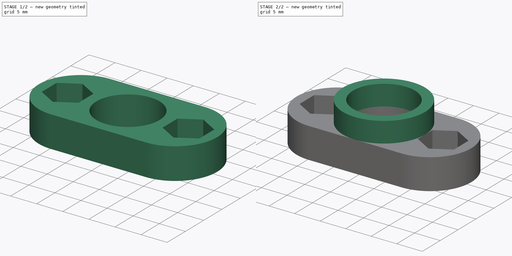
[diagram: build sequence overview — one tinted view per stage of 2, left to right]
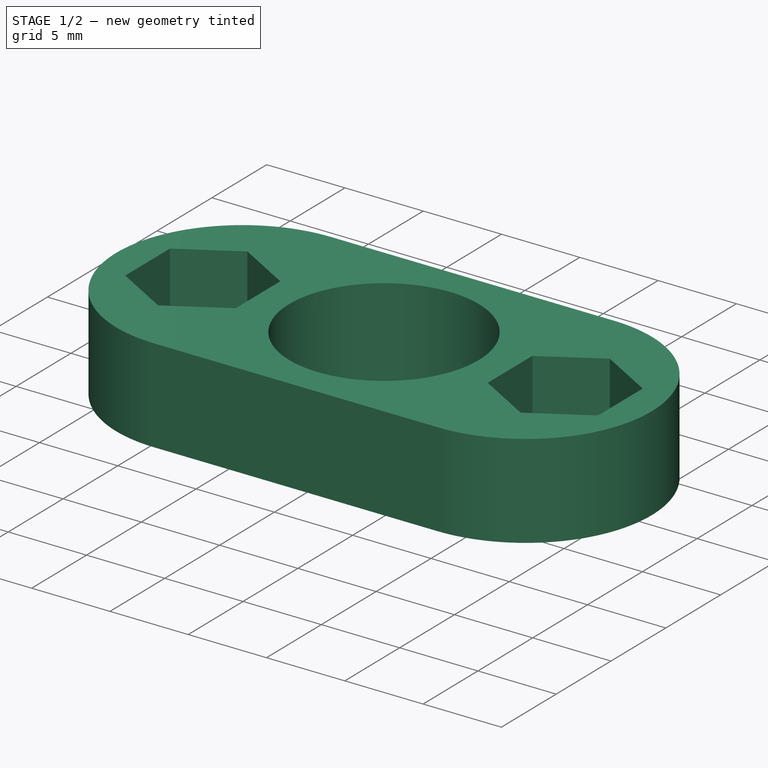
[diagram: stage 1 of 2 — iso view after this stage's code; geometry added in this stage tinted green]
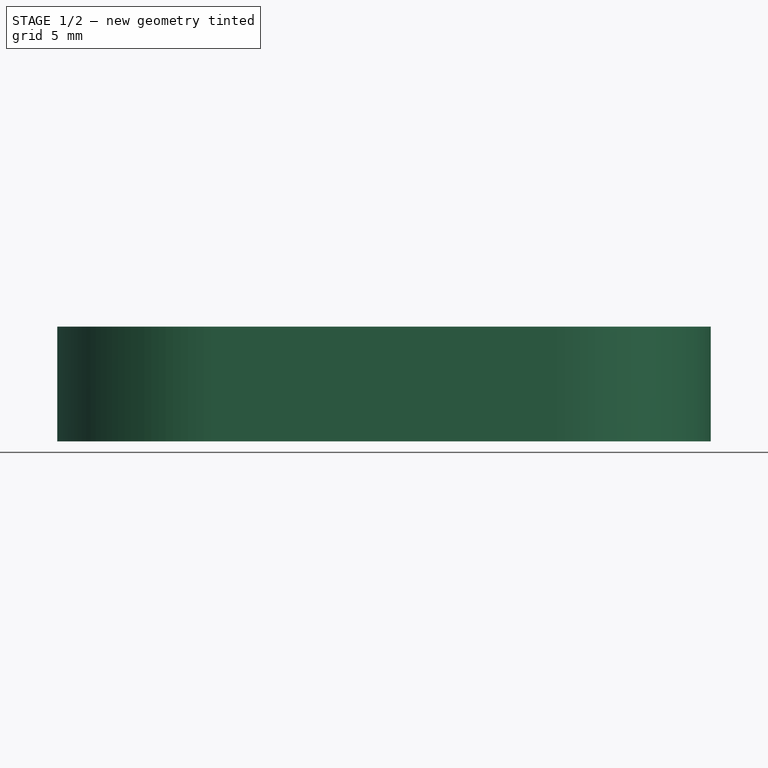
[diagram: stage 1 of 2 — front view after this stage's code; geometry added in this stage tinted green]
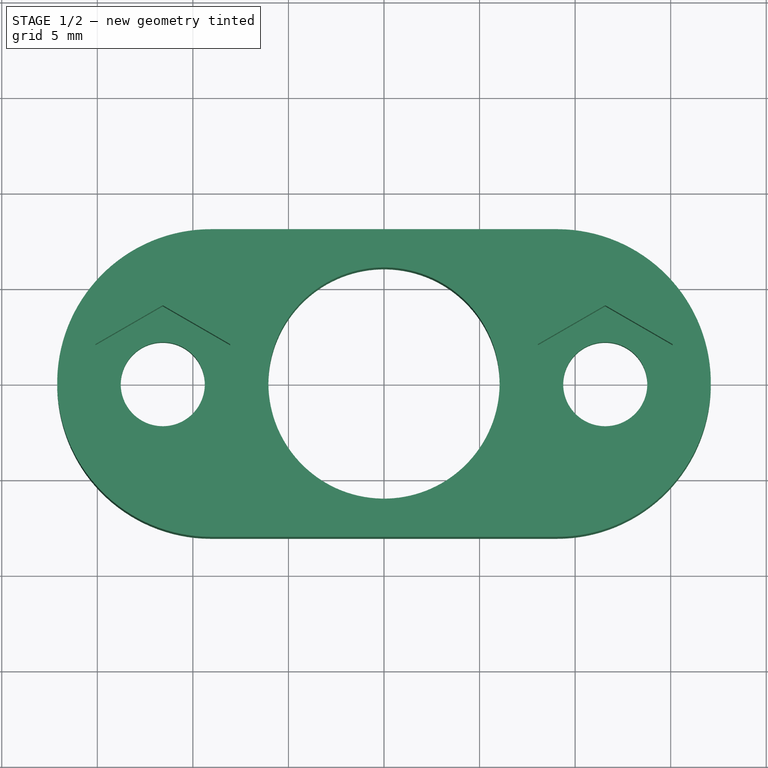
[diagram: stage 1 of 2 — top view after this stage's code; geometry added in this stage tinted green]
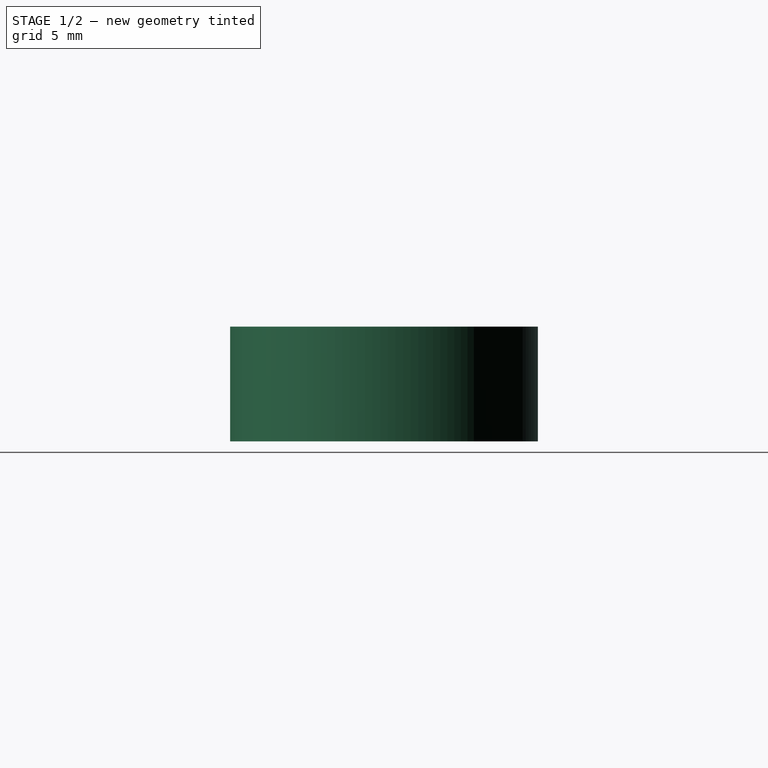
[diagram: stage 1 of 2 — right view after this stage's code; geometry added in this stage tinted green]
FCSTD DOCUMENT  (FreeCAD 0.15R4671 (Git))
Label: Halter Praezisionswelle Z-Achse - Top
License: All rights reserved
LicenseURL: http://de.wikipedia.org/wiki/Alle_Rechte_vorbehalten
objects: Sketcher::SketchObject×3, PartDesign::Pad×2, PartDesign::Pocket×1, PartDesign::Chamfer×1
note: 10 computed .brp shape members not serialized (recipe doc carries the construction recipe); baked Part::Feature solids carry a one-line shape summary decoded from their .brp

FEATURE [Sketcher::SketchObject] Sketch
  sketch-geometry (24):
    g0: Circle CenterX=0 CenterY=0 CenterZ=0 NormalX=0 NormalY=0 NormalZ=1 Radius=6.05
    g1: ArcOfCircle CenterX=-9.05 CenterY=0 CenterZ=0 NormalX=0 NormalY=0 NormalZ=1 Radius=8.05 StartAngle=1.5708 EndAngle=4.71239
    g2: ArcOfCircle CenterX=9.05 CenterY=0 CenterZ=0 NormalX=0 NormalY=0 NormalZ=1 Radius=8.05 StartAngle=4.71239 EndAngle=7.85398
    g3: LineSegment StartX=-9.05 StartY=-8.05 StartZ=0 EndX=9.05 EndY=-8.05 EndZ=0
    g4: LineSegment StartX=-9.05 StartY=8.05 StartZ=0 EndX=9.05 EndY=8.05 EndZ=0
    g5: LineSegment [constr] StartX=-8.05 StartY=2.03516 StartZ=0 EndX=-11.575 EndY=4.07032 EndZ=0
    g6: LineSegment [constr] StartX=-11.575 StartY=4.07032 StartZ=0 EndX=-15.1 EndY=2.03516 EndZ=0
    g7: LineSegment [constr] StartX=-15.1 StartY=2.03516 StartZ=0 EndX=-15.1 EndY=-2.03516 EndZ=0
    g8: LineSegment [constr] StartX=-15.1 StartY=-2.03516 StartZ=0 EndX=-11.575 EndY=-4.07032 EndZ=0
    g9: LineSegment [constr] StartX=-11.575 StartY=-4.07032 StartZ=0 EndX=-8.05 EndY=-2.03516 EndZ=0
    g10: LineSegment [constr] StartX=-8.05 StartY=-2.03516 StartZ=0 EndX=-8.05 EndY=2.03516 EndZ=0
    g11: Circle [constr] CenterX=-11.575 CenterY=0 CenterZ=0 NormalX=0 NormalY=0 NormalZ=1 Radius=4.07032
    g12: LineSegment [constr] StartX=15.1 StartY=-2.03516 StartZ=0 EndX=15.1 EndY=2.03516 EndZ=0
    g13: LineSegment [constr] StartX=15.1 StartY=2.03516 StartZ=0 EndX=11.575 EndY=4.07032 EndZ=0
    g14: LineSegment [constr] StartX=11.575 StartY=4.07032 StartZ=0 EndX=8.05 EndY=2.03516 EndZ=0
    g15: LineSegment [constr] StartX=8.05 StartY=2.03516 StartZ=0 EndX=8.05 EndY=-2.03516 EndZ=0
    g16: LineSegment [constr] StartX=8.05 StartY=-2.03516 StartZ=0 EndX=11.575 EndY=-4.07032 EndZ=0
    g17: LineSegment [constr] StartX=11.575 StartY=-4.07032 StartZ=0 EndX=15.1 EndY=-2.03516 EndZ=0
    g18: Circle [constr] CenterX=11.575 CenterY=0 CenterZ=0 NormalX=0 NormalY=0 NormalZ=1 Radius=4.07032
    g19: LineSegment [constr] StartX=-17.1 StartY=0 StartZ=0 EndX=-11.575 EndY=0 EndZ=0
    g20: LineSegment [constr] StartX=-11.575 StartY=0 StartZ=0 EndX=-6.05 EndY=0 EndZ=0
    g21: Circle CenterX=-11.575 CenterY=0 CenterZ=0 NormalX=0 NormalY=0 NormalZ=1 Radius=2.2
    g22: Circle CenterX=11.575 CenterY=0 CenterZ=0 NormalX=0 NormalY=0 NormalZ=1 Radius=2.2
    g23: Circle [constr] CenterX=0 CenterY=0 CenterZ=0 NormalX=0 NormalY=0 NormalZ=1 Radius=8.05
  constraints (58):
    c: Coincident(g0,g-1)
    c: Radius(g0) = 6.05
    c: Tangent(g1,g4) = 1.5708
    c: Tangent(g1,g3) = -1.5708
    c: Tangent(g3,g2) = -1.5708
    c: Tangent(g4,g2) = 1.5708
    c: Horizontal(g3)
    c: Equal(g1,g2)
    c: PointOnObject(g2,g-1)
    c: DistanceY(g2,g2) = -16.1
    c: Symmetric(g1,g2,g-2)
    c: Coincident(g5,g6)
    c: Coincident(g6,g7)
    c: Coincident(g7,g8)
    c: Coincident(g8,g9)
    c: Coincident(g9,g10)
    c: Coincident(g10,g5)
    c: Equal(g5, g6-g10) x5
    c: PointOnObject(g5,g11)
    c: PointOnObject(g6,g11)
    c: PointOnObject(g7,g11)
    c: PointOnObject(g8,g11)
    c: PointOnObject(g9,g11)
    c: PointOnObject(g10,g11)
    c: Coincident(g12,g13)
    c: Coincident(g13,g14)
    c: Coincident(g14,g15)
    c: Coincident(g15,g16)
    c: Coincident(g16,g17)
    c: Coincident(g17,g12)
    c: Equal(g12, g13-g17) x5
    c: PointOnObject(g12,g18)
    c: PointOnObject(g13,g18)
    c: PointOnObject(g14,g18)
    c: PointOnObject(g15,g18)
    c: PointOnObject(g16,g18)
    c: PointOnObject(g17,g18)
    c: Distance(g16,g12) = 7.05
    c: Equal(g11,g18)
    c: PointOnObject(g11,g-1)
    c: PointOnObject(g18,g-1)
    c: Symmetric(g18,g11,g-2)
    c: Horizontal(g19)
    c: Coincident(g19,g20)
    c: Horizontal(g20)
    c: Equal(g19,g20)
    c: PointOnObject(g20,g0)
    c: PointOnObject(g19,g1)
    c: Coincident(g11,g19)
    c: Coincident(g21,g11)
    c: Coincident(g22,g18)
    c: Radius(g22) = 2.2
    c: Equal(g22,g21)
    c: Vertical(g15)
    c: Vertical(g10)
    c: Coincident(g23,g-1)
    c: Tangent(g23,g4)
    c: Tangent(g10,g23)
FEATURE [PartDesign::Pad] Pad
  Length = 6
  Length2 = 100
  Sketch = -> Sketch
  Type = 0
FEATURE [Sketcher::SketchObject] Sketch001
  ExternalGeometry = -> [Pad]
  Placement = pos=(0,0,6) rot=(0,0,1;0rad)
  Support = -> Pad [Face9]
  sketch-geometry (14):
    g0: LineSegment StartX=-11.575 StartY=-4.07032 StartZ=0 EndX=-8.05 EndY=-2.03516 EndZ=0
    g1: LineSegment StartX=-8.05 StartY=-2.03516 StartZ=0 EndX=-8.05 EndY=2.03516 EndZ=0
    g2: LineSegment StartX=-8.05 StartY=2.03516 StartZ=0 EndX=-11.575 EndY=4.07032 EndZ=0
    g3: LineSegment StartX=-11.575 StartY=4.07032 StartZ=0 EndX=-15.1 EndY=2.03516 EndZ=0
    g4: LineSegment StartX=-15.1 StartY=2.03516 StartZ=0 EndX=-15.1 EndY=-2.03516 EndZ=0
    g5: LineSegment StartX=-15.1 StartY=-2.03516 StartZ=0 EndX=-11.575 EndY=-4.07032 EndZ=0
    g6: Circle [constr] CenterX=-11.575 CenterY=0 CenterZ=0 NormalX=0 NormalY=0 NormalZ=1 Radius=4.07032
    g7: LineSegment StartX=11.575 StartY=-4.07032 StartZ=0 EndX=15.1 EndY=-2.03516 EndZ=0
    g8: LineSegment StartX=15.1 StartY=-2.03516 StartZ=0 EndX=15.1 EndY=2.03516 EndZ=0
    g9: LineSegment StartX=15.1 StartY=2.03516 StartZ=0 EndX=11.575 EndY=4.07032 EndZ=0
    g10: LineSegment StartX=11.575 StartY=4.07032 StartZ=0 EndX=8.05 EndY=2.03516 EndZ=0
    g11: LineSegment StartX=8.05 StartY=2.03516 StartZ=0 EndX=8.05 EndY=-2.03516 EndZ=0
    g12: LineSegment StartX=8.05 StartY=-2.03516 StartZ=0 EndX=11.575 EndY=-4.07032 EndZ=0
    g13: Circle [constr] CenterX=11.575 CenterY=0 CenterZ=0 NormalX=0 NormalY=0 NormalZ=1 Radius=4.07032
  constraints (32):
    c: Coincident(g0,g1)
    c: Coincident(g1,g2)
    c: Coincident(g2,g3)
    c: Coincident(g3,g4)
    c: Coincident(g4,g5)
    c: Coincident(g5,g0)
    c: Equal(g0, g1-g5) x5
    c: PointOnObject(g0,g6)
    c: PointOnObject(g1,g6)
    c: PointOnObject(g2,g6)
    c: PointOnObject(g3,g6)
    c: PointOnObject(g4,g6)
    c: PointOnObject(g5,g6)
    c: Vertical(g4)
    c: Coincident(g7,g8)
    c: Coincident(g8,g9)
    c: Coincident(g9,g10)
    c: Coincident(g10,g11)
    c: Coincident(g11,g12)
    c: Coincident(g12,g7)
    c: Equal(g7, g8-g12) x5
    c: PointOnObject(g7,g13)
    c: PointOnObject(g8,g13)
    c: PointOnObject(g9,g13)
    c: PointOnObject(g10,g13)
    c: PointOnObject(g11,g13)
    c: PointOnObject(g12,g13)
    c: Vertical(g11)
    c: Equal(g13,g6)
    c: Distance(g4,g0) = 7.05
    c: Coincident(g6,g-4)
    c: Coincident(g13,g-3)
FEATURE [PartDesign::Pocket] Pocket
  Length = 3.5
  Sketch = -> Sketch001
  Type = 0
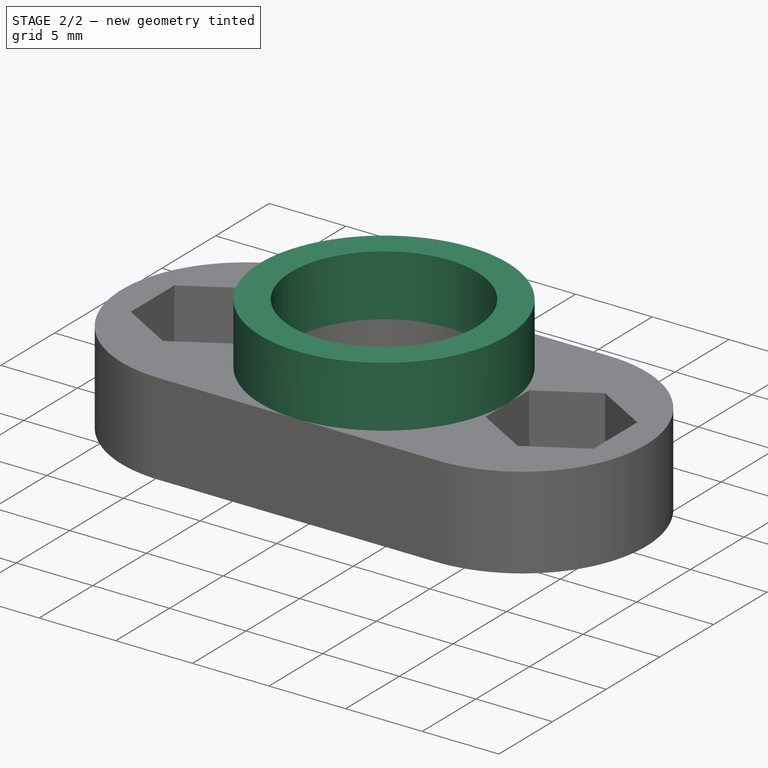
[diagram: stage 2 of 2 — iso view after this stage's code; geometry added in this stage tinted green]
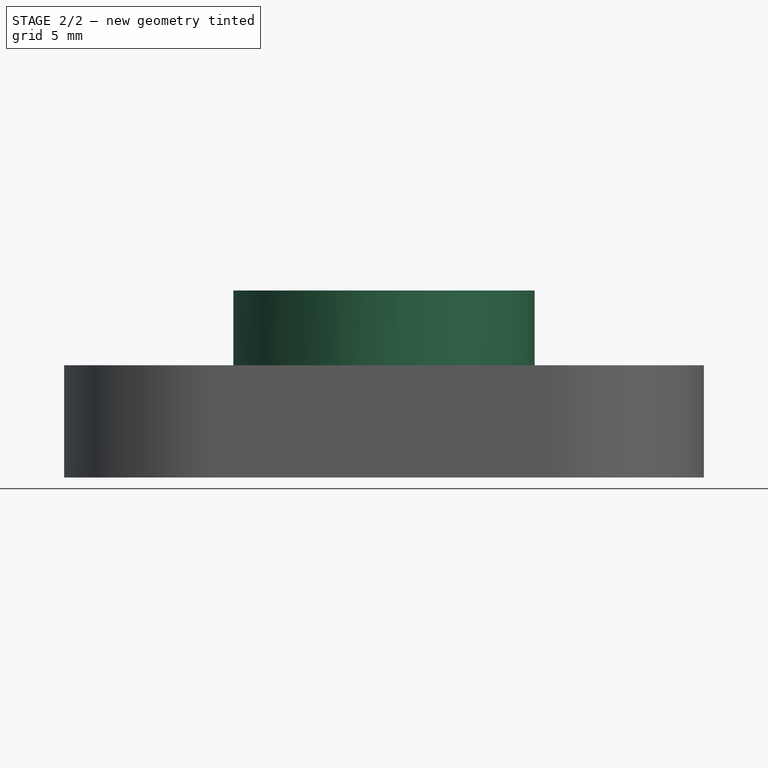
[diagram: stage 2 of 2 — front view after this stage's code; geometry added in this stage tinted green]
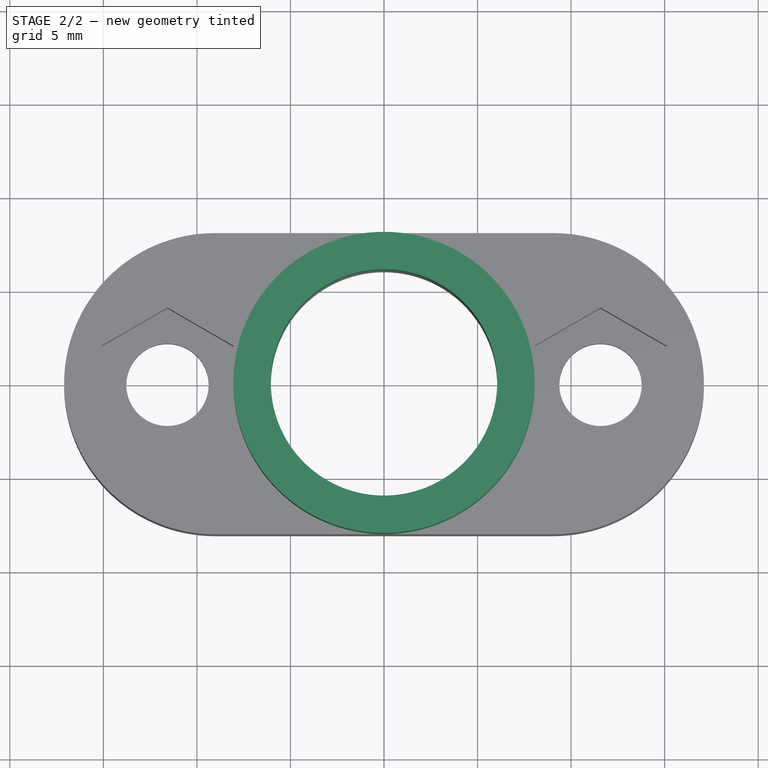
[diagram: stage 2 of 2 — top view after this stage's code; geometry added in this stage tinted green]
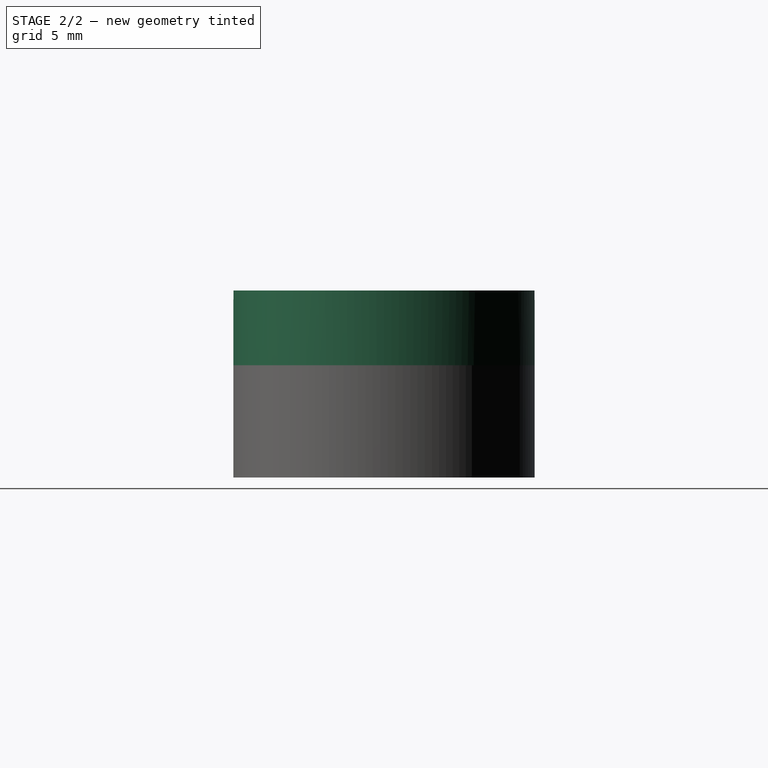
[diagram: stage 2 of 2 — right view after this stage's code; geometry added in this stage tinted green]
FEATURE [Sketcher::SketchObject] Sketch002
  ExternalGeometry = -> [Pocket]
  Placement = pos=(0,0,6) rot=(0,0,1;0rad)
  Support = -> Pocket [Face5]
  sketch-geometry (2):
    g0: Circle CenterX=0 CenterY=0 CenterZ=0 NormalX=0 NormalY=0 NormalZ=1 Radius=8.05
    g1: Circle CenterX=0 CenterY=0 CenterZ=0 NormalX=0 NormalY=0 NormalZ=1 Radius=6.05
  constraints (4):
    c: Coincident(g0,g-1)
    c: Coincident(g0,g1)
    c: Equal(g1,g-3)
    c: Tangent(g0,g-4)
FEATURE [PartDesign::Pad] Pad001
  Length = 4
  Length2 = 100
  Sketch = -> Sketch002
  Type = 0
FEATURE [PartDesign::Chamfer] Chamfer
  Base = -> Pad001 [Edge16,Edge14,Edge15]
  Size = 0.5
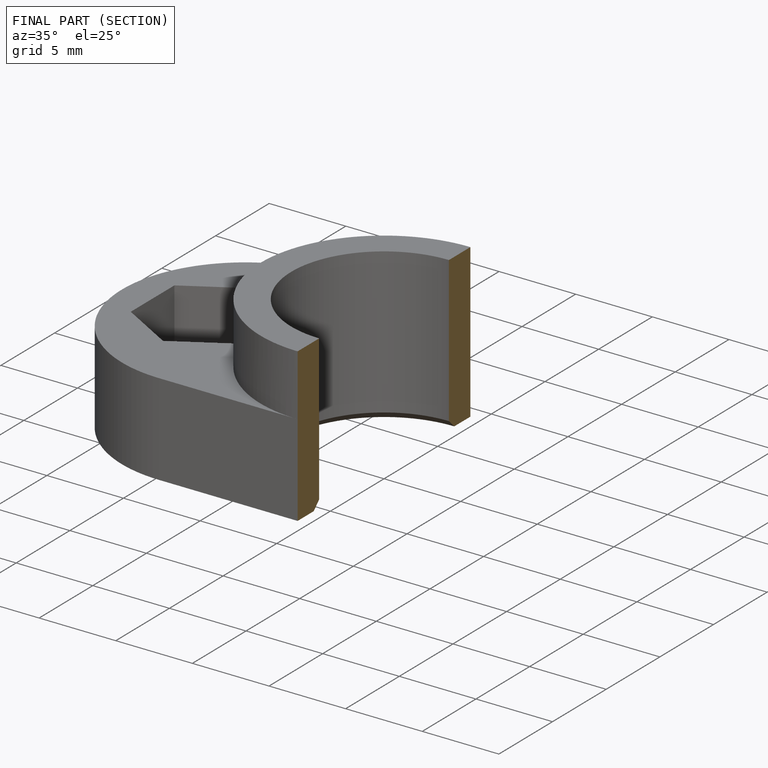
[diagram: finished part — half-section view (interior)]
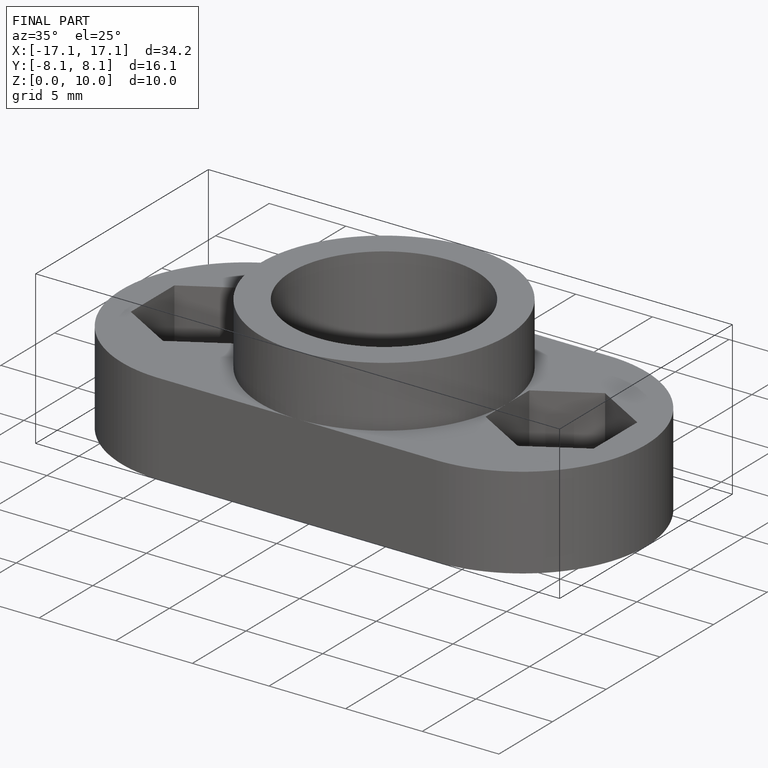
[diagram: finished part — iso view with bounding-box wireframe]
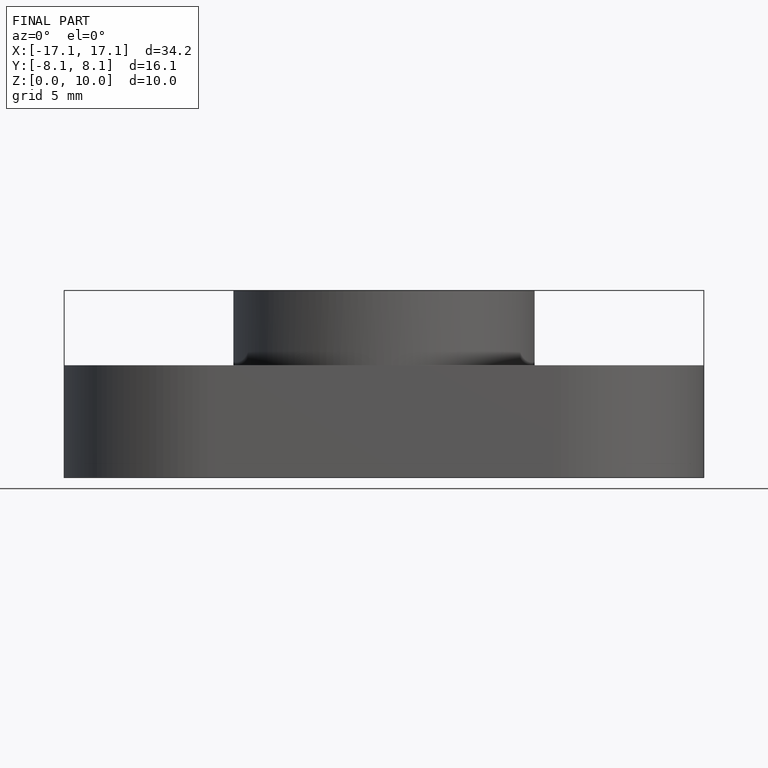
[diagram: finished part — front view with bounding-box wireframe]
